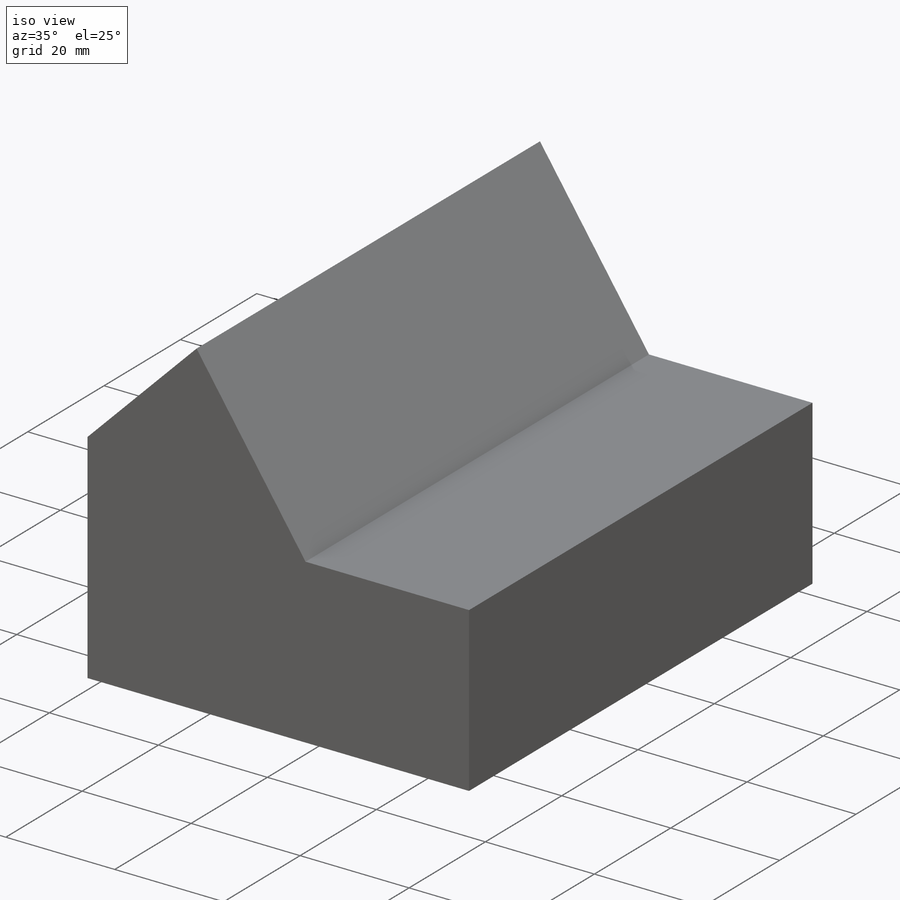
[diagram: iso view]
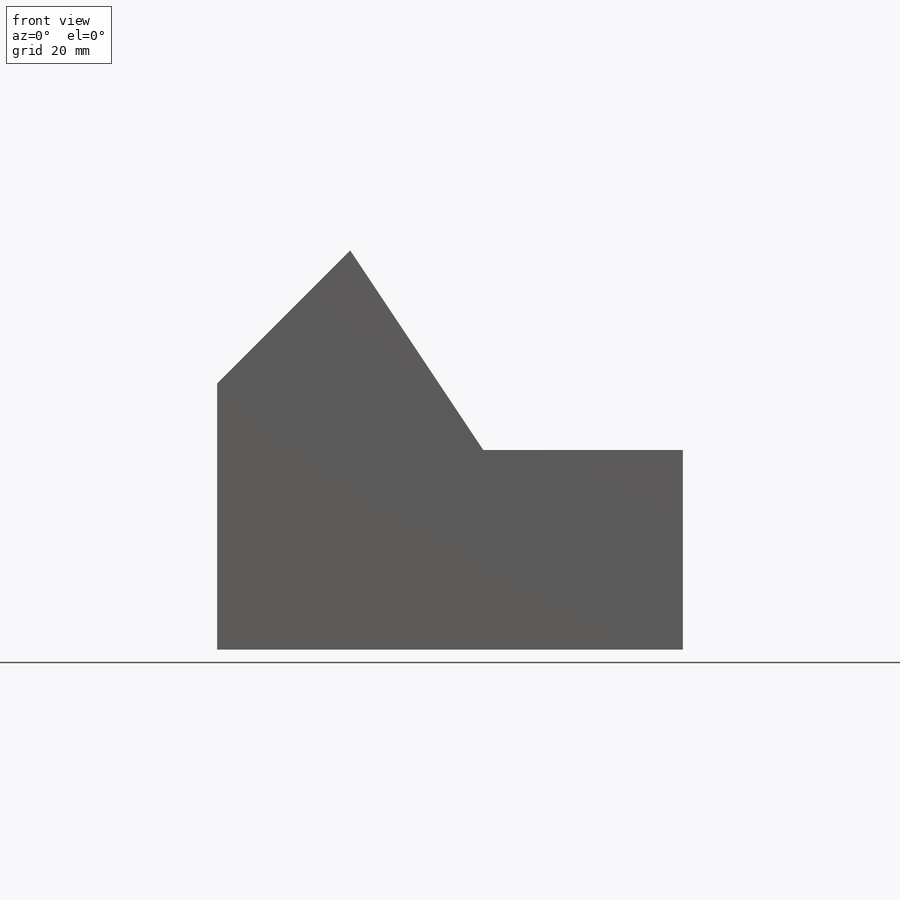
[diagram: front view]
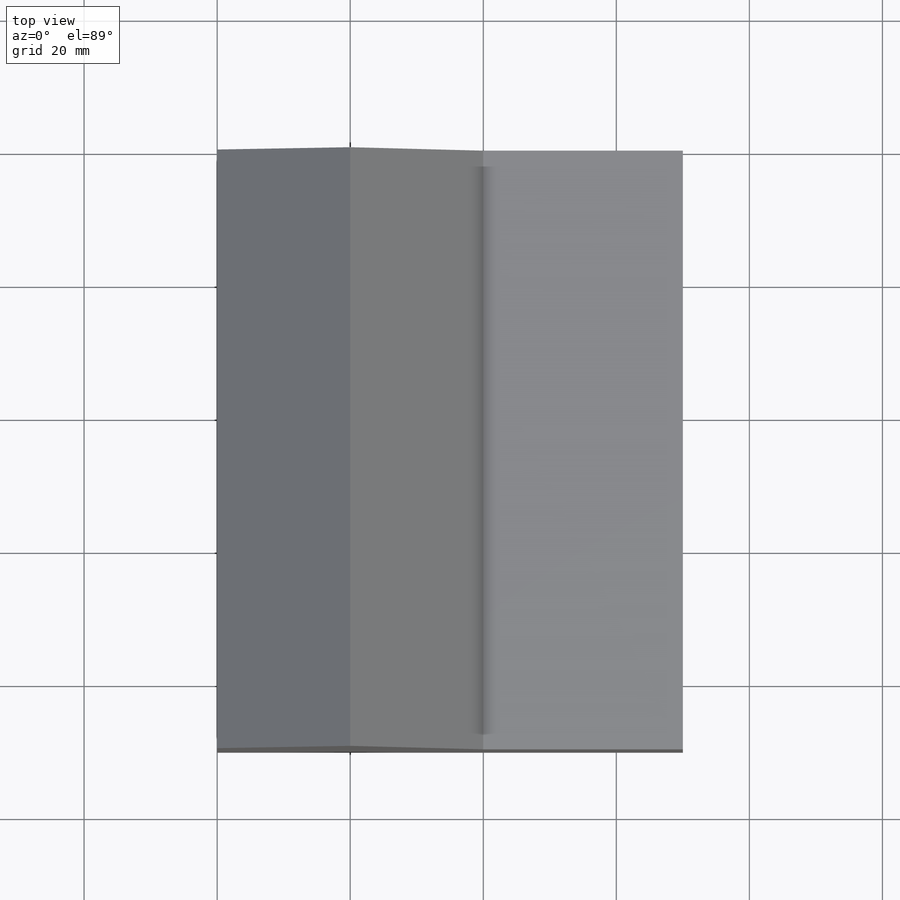
[diagram: top view]
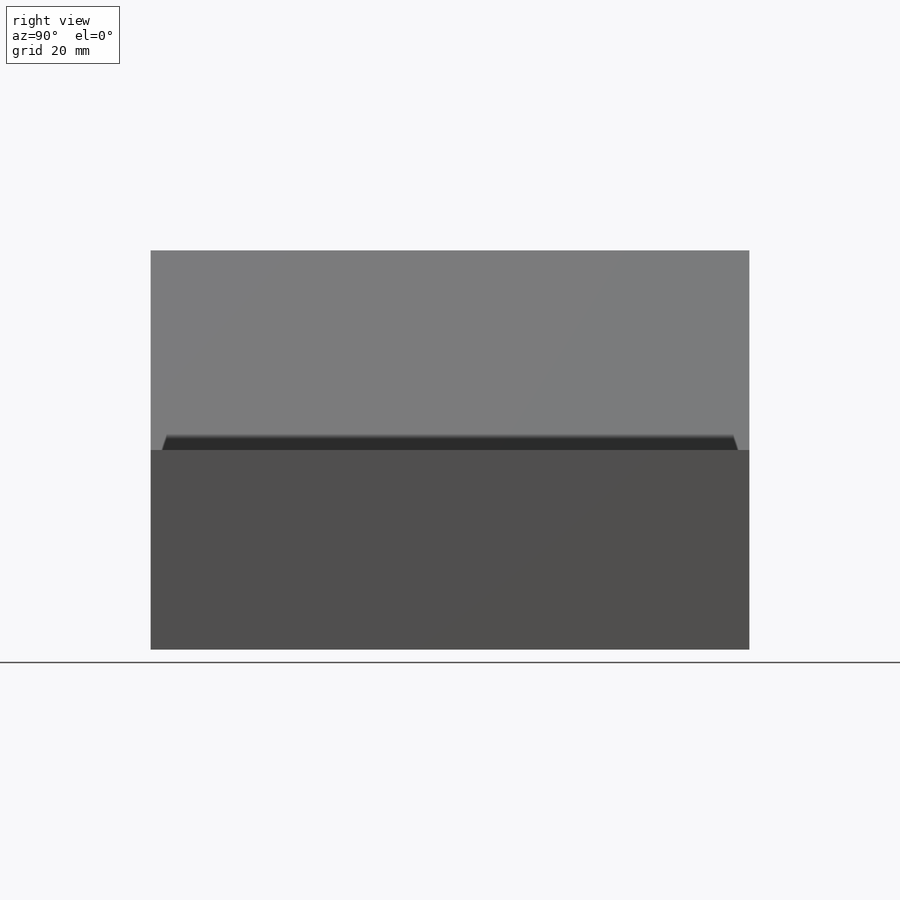
[diagram: right view]
SOLIDWORKS PART (.sldprt)
format: sldprt  version: not decoded by parser v0  size: 193,024 bytes
history: native  units: mm
features: sketch x3, pattern_linear x2, material x1, extrude x1 (+12 scaffold rows collapsed)
feature tree (19):
  scaffold x12  (default folders/planes/origin — collapsed)
  material  "Material <not specified>"
  sketch  "Sketch1"  dims[c1.D1=40.0mm c1.D2=20.0mm c1.D3=20.0mm c1.D4=30.0mm c1.D5=30.0mm c1.D6=~25.615528mm c2.D1=30.0mm c2.D6=40.0mm]
  extrude  "Boss-Extrude1"  Depth=90mm
  sketch  "Sketch2"  dims[D1=20.0mm D2=50.0mm D3=20.0mm]
  sketch  "Sketch6"  dims[D1=20.0mm D2=20.0mm D3=10.0mm]
  pattern_linear  "LPattern1"  Count1=2 Count2=1 Spacing1=50mm Spacing2=50mm
  pattern_linear  "Split Line2"  [2 undecoded]
decode coverage: 5 of 6 modeling features carry decoded parameters
note: ~ marks probable driven/reference dimensions
note: 2 parameter values undecoded
note: suppression state not decoded; provenance and decode notes live in map.json
